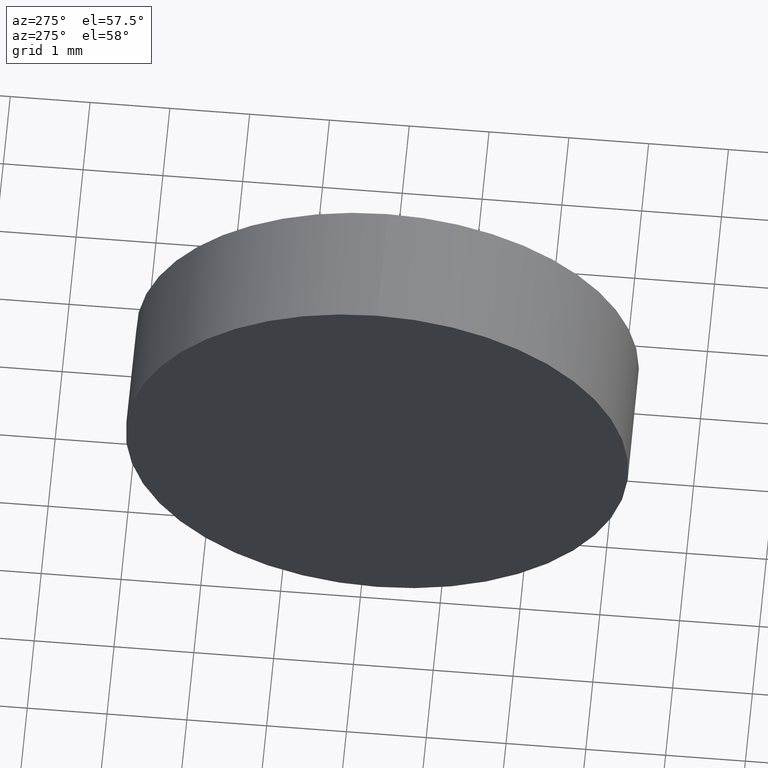
[diagram: clean part render]
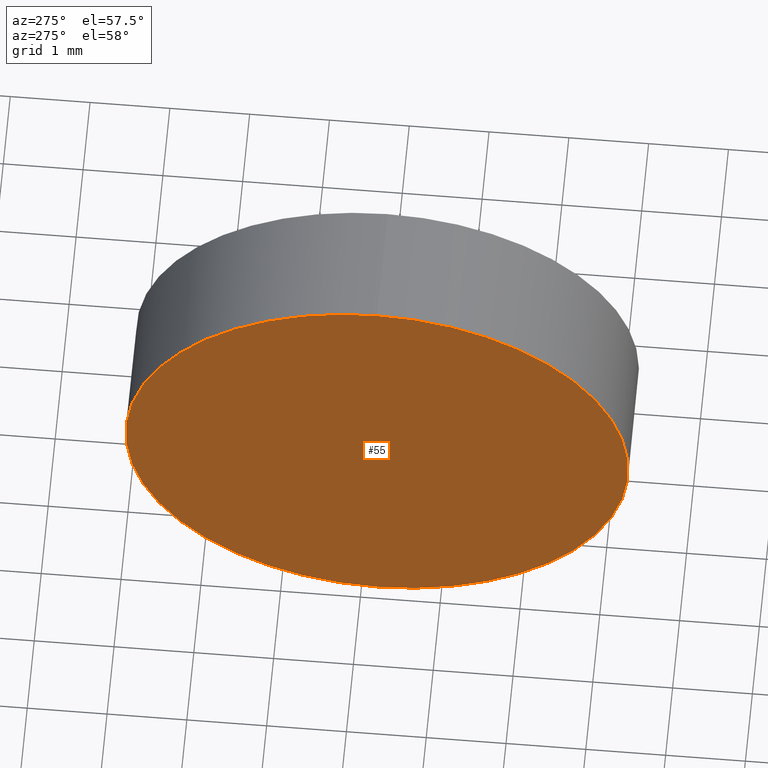
[diagram: same view with one face highlighted and labeled with its STEP entity id]
A machine part, auxiliary view. The second image highlights one B-rep face of the part: STEP entity #55.
In plain terms, the highlighted planar face has unit normal (1, 0, 0).
Its self-contained STEP definition (entity closure, byte-faithful):
#17 = PLANE ( 'NONE',  #161 ) ;
#19 = DIRECTION ( 'NONE',  ( -1.000000000000000000, -0.0000000000000000000, -0.0000000000000000000 ) ) ;
#20 = CIRCLE ( 'NONE', #42, 3.149999999999998100 ) ;
#22 = ORIENTED_EDGE ( 'NONE', *, *, #82, .T. ) ;
#23 = EDGE_CURVE ( 'NONE', #69, #169, #20, .T. ) ;
#27 = DIRECTION ( 'NONE',  ( 0.0000000000000000000, 0.0000000000000000000, -1.000000000000000000 ) ) ;
#28 = AXIS2_PLACEMENT_3D ( 'NONE', #29, #19, #46 ) ;
#29 = CARTESIAN_POINT ( 'NONE',  ( 607.0816480025523600, -17.20118396197295900, 0.0000000000000000000 ) ) ;
#39 = CARTESIAN_POINT ( 'NONE',  ( 607.0816480025523600, -17.20118396197295900, 3.149999999999998100 ) ) ;
#42 = AXIS2_PLACEMENT_3D ( 'NONE', #100, #114, #129 ) ;
#43 = CARTESIAN_POINT ( 'NONE',  ( 607.0816480025523600, -17.20118396197295900, -3.149999999999998100 ) ) ;
#46 = DIRECTION ( 'NONE',  ( 0.0000000000000000000, 0.0000000000000000000, 1.000000000000000000 ) ) ;
#55 = ADVANCED_FACE ( 'NONE', ( #80 ), #17, .F. ) ;
#69 = VERTEX_POINT ( 'NONE', #39 ) ;
#74 = CIRCLE ( 'NONE', #28, 3.149999999999998100 ) ;
#80 = FACE_OUTER_BOUND ( 'NONE', #94, .T. ) ;
#82 = EDGE_CURVE ( 'NONE', #169, #69, #74, .T. ) ;
#94 = EDGE_LOOP ( 'NONE', ( #132, #22 ) ) ;
#100 = CARTESIAN_POINT ( 'NONE',  ( 607.0816480025523600, -17.20118396197295900, 0.0000000000000000000 ) ) ;
#113 = CARTESIAN_POINT ( 'NONE',  ( 607.0816480025523600, -17.20118396197295900, 0.0000000000000000000 ) ) ;
#114 = DIRECTION ( 'NONE',  ( -1.000000000000000000, -0.0000000000000000000, -0.0000000000000000000 ) ) ;
#129 = DIRECTION ( 'NONE',  ( 0.0000000000000000000, 0.0000000000000000000, 1.000000000000000000 ) ) ;
#132 = ORIENTED_EDGE ( 'NONE', *, *, #23, .T. ) ;
#143 = DIRECTION ( 'NONE',  ( 1.000000000000000000, 0.0000000000000000000, 0.0000000000000000000 ) ) ;
#161 = AXIS2_PLACEMENT_3D ( 'NONE', #113, #143, #27 ) ;
#169 = VERTEX_POINT ( 'NONE', #43 ) ;